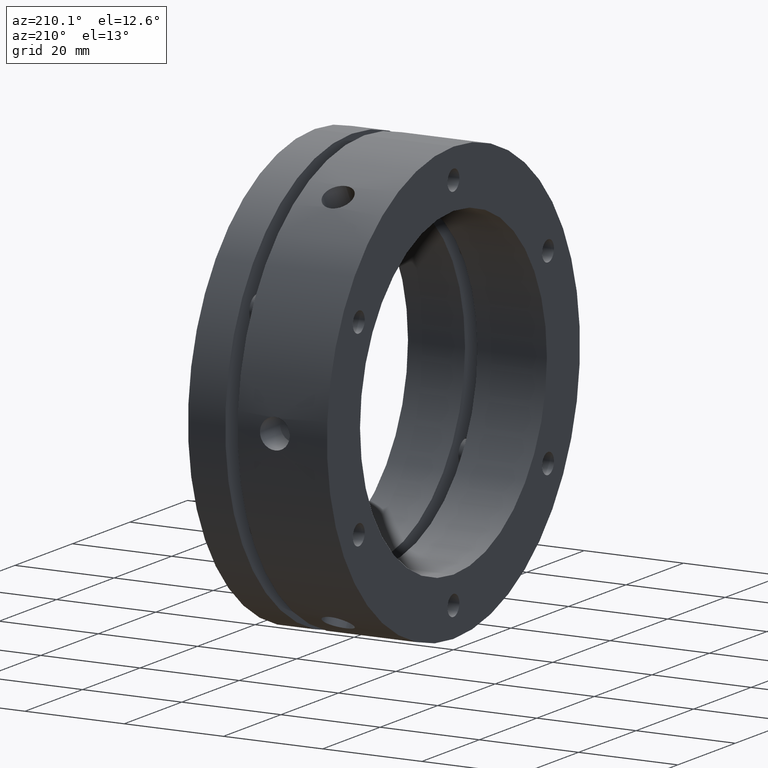
[diagram: clean part render]
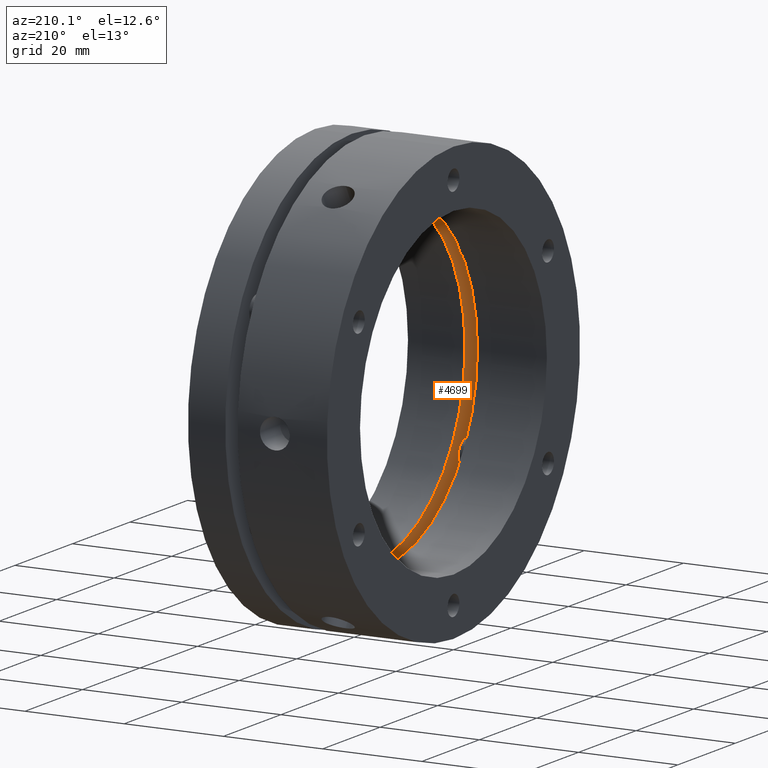
[diagram: same view with one face highlighted and labeled with its STEP entity id]
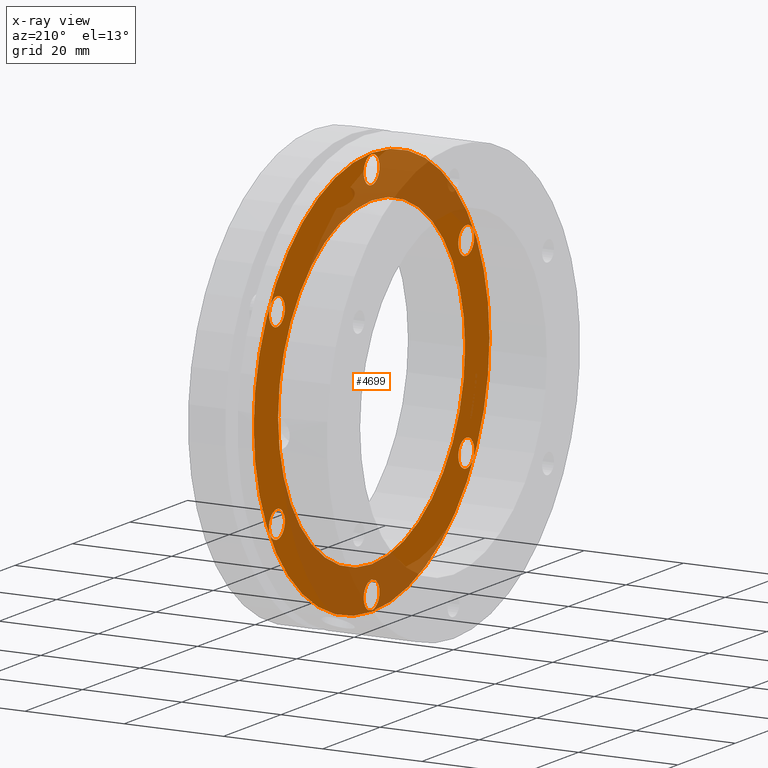
[diagram: x-ray of the same camera — body ghosted, the highlighted face saturated]
A machine part, auxiliary view. The second image highlights one B-rep face of the part: STEP entity #4699.
The next image is the same camera in x-ray: the body ghosted, the highlighted face saturated — about 36% of this face is hidden behind the body in this view.
In plain terms, the highlighted planar face has unit normal (1, 0, 0).
Its self-contained STEP definition (entity closure, byte-faithful):
#183 = CARTESIAN_POINT ( 'NONE',  ( 16.49999999999998900, 0.0000000000000000000, 35.25000000000002100 ) ) ;
#194 = CARTESIAN_POINT ( 'NONE',  ( 16.49999999999998900, 3.367778697655217600E-016, 40.75000000000002800 ) ) ;
#219 = CARTESIAN_POINT ( 'NONE',  ( 16.49999999999998900, -32.90896534380869600, 21.75000000000001400 ) ) ;
#485 = CARTESIAN_POINT ( 'NONE',  ( 16.49999999999998900, -32.90896534380870300, -19.00000000000000700 ) ) ;
#486 = DIRECTION ( 'NONE',  ( 1.000000000000000000, 0.0000000000000000000, 0.0000000000000000000 ) ) ;
#487 = DIRECTION ( 'NONE',  ( 0.0000000000000000000, 0.0000000000000000000, -1.000000000000000000 ) ) ;
#491 = CARTESIAN_POINT ( 'NONE',  ( 16.49999999999998900, 0.0000000000000000000, 38.00000000000002800 ) ) ;
#492 = DIRECTION ( 'NONE',  ( 1.000000000000000000, 0.0000000000000000000, 0.0000000000000000000 ) ) ;
#493 = DIRECTION ( 'NONE',  ( 0.0000000000000000000, 0.0000000000000000000, -1.000000000000000000 ) ) ;
#582 = CARTESIAN_POINT ( 'NONE',  ( 16.49999999999998900, 32.90896534380871000, 18.99999999999999300 ) ) ;
#583 = DIRECTION ( 'NONE',  ( 1.000000000000000000, 0.0000000000000000000, 0.0000000000000000000 ) ) ;
#584 = DIRECTION ( 'NONE',  ( 0.0000000000000000000, 0.0000000000000000000, -1.000000000000000000 ) ) ;
#605 = CARTESIAN_POINT ( 'NONE',  ( 16.50000000000000000, 0.0000000000000000000, 0.0000000000000000000 ) ) ;
#606 = DIRECTION ( 'NONE',  ( 1.000000000000000000, -0.0000000000000000000, -0.0000000000000000000 ) ) ;
#607 = DIRECTION ( 'NONE',  ( 0.0000000000000000000, 0.0000000000000000000, 1.000000000000000000 ) ) ;
#676 = CARTESIAN_POINT ( 'NONE',  ( 16.49999999999998900, 32.90896534380868800, -19.00000000000003200 ) ) ;
#677 = DIRECTION ( 'NONE',  ( 1.000000000000000000, 0.0000000000000000000, 0.0000000000000000000 ) ) ;
#678 = DIRECTION ( 'NONE',  ( 0.0000000000000000000, 0.0000000000000000000, -1.000000000000000000 ) ) ;
#689 = CARTESIAN_POINT ( 'NONE',  ( 16.49999999999998900, -6.661337999999999900E-015, -38.00000000000003600 ) ) ;
#690 = DIRECTION ( 'NONE',  ( 1.000000000000000000, 0.0000000000000000000, 0.0000000000000000000 ) ) ;
#691 = DIRECTION ( 'NONE',  ( 0.0000000000000000000, 0.0000000000000000000, -1.000000000000000000 ) ) ;
#711 = CARTESIAN_POINT ( 'NONE',  ( 16.49999999999998900, -32.90896534380869600, 19.00000000000001800 ) ) ;
#712 = DIRECTION ( 'NONE',  ( 1.000000000000000000, 0.0000000000000000000, 0.0000000000000000000 ) ) ;
#713 = DIRECTION ( 'NONE',  ( 0.0000000000000000000, 0.0000000000000000000, -1.000000000000000000 ) ) ;
#745 = CARTESIAN_POINT ( 'NONE',  ( 16.50000000000000000, 0.0000000000000000000, 0.0000000000000000000 ) ) ;
#746 = DIRECTION ( 'NONE',  ( 1.000000000000000000, -0.0000000000000000000, -0.0000000000000000000 ) ) ;
#747 = DIRECTION ( 'NONE',  ( 0.0000000000000000000, 0.0000000000000000000, 1.000000000000000000 ) ) ;
#754 = CARTESIAN_POINT ( 'NONE',  ( 16.49999999999998900, 0.0000000000000000000, 38.00000000000002800 ) ) ;
#755 = DIRECTION ( 'NONE',  ( 1.000000000000000000, 0.0000000000000000000, 0.0000000000000000000 ) ) ;
#756 = DIRECTION ( 'NONE',  ( 0.0000000000000000000, 0.0000000000000000000, -1.000000000000000000 ) ) ;
#757 = CARTESIAN_POINT ( 'NONE',  ( 16.50000000000000400, 0.0000000000000000000, 0.0000000000000000000 ) ) ;
#758 = DIRECTION ( 'NONE',  ( -1.000000000000000000, -0.0000000000000000000, -0.0000000000000000000 ) ) ;
#759 = DIRECTION ( 'NONE',  ( 0.0000000000000000000, 0.0000000000000000000, -1.000000000000000000 ) ) ;
#760 = CARTESIAN_POINT ( 'NONE',  ( 16.49999999999998900, -32.90896534380869600, 19.00000000000001800 ) ) ;
#761 = DIRECTION ( 'NONE',  ( 1.000000000000000000, 0.0000000000000000000, 0.0000000000000000000 ) ) ;
#762 = DIRECTION ( 'NONE',  ( 0.0000000000000000000, 0.0000000000000000000, -1.000000000000000000 ) ) ;
#763 = CARTESIAN_POINT ( 'NONE',  ( 16.49999999999998900, -32.90896534380870300, -19.00000000000000700 ) ) ;
#764 = DIRECTION ( 'NONE',  ( 1.000000000000000000, 0.0000000000000000000, 0.0000000000000000000 ) ) ;
#765 = DIRECTION ( 'NONE',  ( 0.0000000000000000000, 0.0000000000000000000, -1.000000000000000000 ) ) ;
#769 = CARTESIAN_POINT ( 'NONE',  ( 16.49999999999998900, -6.661337999999999900E-015, -38.00000000000003600 ) ) ;
#770 = DIRECTION ( 'NONE',  ( 1.000000000000000000, 0.0000000000000000000, 0.0000000000000000000 ) ) ;
#771 = DIRECTION ( 'NONE',  ( 0.0000000000000000000, 0.0000000000000000000, -1.000000000000000000 ) ) ;
#772 = CARTESIAN_POINT ( 'NONE',  ( 16.49999999999998900, 32.90896534380868800, -19.00000000000003200 ) ) ;
#773 = DIRECTION ( 'NONE',  ( 1.000000000000000000, 0.0000000000000000000, 0.0000000000000000000 ) ) ;
#774 = DIRECTION ( 'NONE',  ( 0.0000000000000000000, 0.0000000000000000000, -1.000000000000000000 ) ) ;
#778 = CARTESIAN_POINT ( 'NONE',  ( 16.49999999999998900, 32.90896534380871000, 18.99999999999999300 ) ) ;
#779 = DIRECTION ( 'NONE',  ( 1.000000000000000000, 0.0000000000000000000, 0.0000000000000000000 ) ) ;
#780 = DIRECTION ( 'NONE',  ( 0.0000000000000000000, 0.0000000000000000000, -1.000000000000000000 ) ) ;
#1037 = EDGE_LOOP ( 'NONE', ( #4096, #4097 ) ) ;
#1123 = VERTEX_POINT ( 'NONE', #4355 ) ;
#1128 = VERTEX_POINT ( 'NONE', #4360 ) ;
#1324 = CIRCLE ( 'NONE', #3224, 2.749999999999999100 ) ;
#1328 = CIRCLE ( 'NONE', #3225, 2.750000000000002700 ) ;
#1393 = CIRCLE ( 'NONE', #3238, 2.749999999999999100 ) ;
#1412 = CIRCLE ( 'NONE', #3241, 41.00000000000000700 ) ;
#1452 = CIRCLE ( 'NONE', #3256, 2.749999999999999100 ) ;
#1461 = CIRCLE ( 'NONE', #3258, 2.750000000000002700 ) ;
#1472 = CIRCLE ( 'NONE', #3264, 2.749999999999999100 ) ;
#1520 = CIRCLE ( 'NONE', #3271, 41.00000000000000700 ) ;
#1525 = CIRCLE ( 'NONE', #3274, 2.750000000000002700 ) ;
#1527 = CIRCLE ( 'NONE', #3275, 32.50000000000000000 ) ;
#1529 = CIRCLE ( 'NONE', #3276, 2.749999999999999100 ) ;
#1530 = CIRCLE ( 'NONE', #3277, 2.749999999999999100 ) ;
#1533 = CIRCLE ( 'NONE', #3279, 2.750000000000002700 ) ;
#1534 = CIRCLE ( 'NONE', #3280, 2.749999999999999100 ) ;
#1537 = CIRCLE ( 'NONE', #3282, 2.749999999999999100 ) ;
#1607 = VERTEX_POINT ( 'NONE', #183 ) ;
#1647 = CIRCLE ( 'NONE', #3342, 32.50000000000000000 ) ;
#1651 = VERTEX_POINT ( 'NONE', #194 ) ;
#1766 = VERTEX_POINT ( 'NONE', #219 ) ;
#1866 = FACE_BOUND ( 'NONE', #3493, .T. ) ;
#1867 = FACE_BOUND ( 'NONE', #3474, .T. ) ;
#1869 = FACE_BOUND ( 'NONE', #3509, .T. ) ;
#1871 = FACE_BOUND ( 'NONE', #3502, .T. ) ;
#1873 = FACE_BOUND ( 'NONE', #3544, .T. ) ;
#1874 = FACE_BOUND ( 'NONE', #3564, .T. ) ;
#1875 = FACE_BOUND ( 'NONE', #3559, .T. ) ;
#1876 = FACE_OUTER_BOUND ( 'NONE', #1037, .T. ) ;
#1895 = CARTESIAN_POINT ( 'NONE',  ( 16.50000000000000000, 5.021051876504149000E-015, -41.00000000000000700 ) ) ;
#1896 = CARTESIAN_POINT ( 'NONE',  ( 16.50000000000000000, 0.0000000000000000000, 41.00000000000000700 ) ) ;
#1899 = CARTESIAN_POINT ( 'NONE',  ( 16.49999999999998900, 32.90896534380871000, 16.24999999999999300 ) ) ;
#1900 = CARTESIAN_POINT ( 'NONE',  ( 16.49999999999998900, 32.90896534380871000, 21.74999999999999300 ) ) ;
#1903 = CARTESIAN_POINT ( 'NONE',  ( 16.49999999999998900, 32.90896534380868800, -21.75000000000002800 ) ) ;
#1904 = CARTESIAN_POINT ( 'NONE',  ( 16.49999999999998900, 32.90896534380868800, -16.25000000000003200 ) ) ;
#1907 = CARTESIAN_POINT ( 'NONE',  ( 16.49999999999998900, -6.661337999999999900E-015, -40.75000000000003600 ) ) ;
#1908 = CARTESIAN_POINT ( 'NONE',  ( 16.49999999999998900, -6.324560130234478200E-015, -35.25000000000002800 ) ) ;
#1911 = CARTESIAN_POINT ( 'NONE',  ( 16.49999999999998900, -32.90896534380870300, -21.75000000000000700 ) ) ;
#1912 = CARTESIAN_POINT ( 'NONE',  ( 16.49999999999998900, -32.90896534380870300, -16.25000000000000700 ) ) ;
#1915 = CARTESIAN_POINT ( 'NONE',  ( 16.49999999999998900, -32.90896534380869600, 16.25000000000001800 ) ) ;
#2016 = CARTESIAN_POINT ( 'NONE',  ( 16.50000000000000400, 0.0000000000000000000, 0.0000000000000000000 ) ) ;
#2017 = DIRECTION ( 'NONE',  ( -1.000000000000000000, -0.0000000000000000000, -0.0000000000000000000 ) ) ;
#2018 = DIRECTION ( 'NONE',  ( 0.0000000000000000000, 0.0000000000000000000, -1.000000000000000000 ) ) ;
#2278 = DIRECTION ( 'NONE',  ( 1.000000000000000000, -0.0000000000000000000, 0.0000000000000000000 ) ) ;
#2280 = CARTESIAN_POINT ( 'NONE',  ( 16.50000000000000400, 20.50000000000000400, 0.0000000000000000000 ) ) ;
#2282 = PLANE ( 'NONE',  #3426 ) ;
#2284 = DIRECTION ( 'NONE',  ( 0.0000000000000000000, 0.0000000000000000000, -1.000000000000000000 ) ) ;
#3145 = EDGE_CURVE ( 'NONE', #4572, #4571, #1324, .T. ) ;
#3148 = EDGE_CURVE ( 'NONE', #1651, #1607, #1328, .T. ) ;
#3186 = EDGE_CURVE ( 'NONE', #4560, #4559, #1393, .T. ) ;
#3198 = EDGE_CURVE ( 'NONE', #4556, #4555, #1412, .T. ) ;
#3224 = AXIS2_PLACEMENT_3D ( 'NONE', #485, #486, #487 ) ;
#3225 = AXIS2_PLACEMENT_3D ( 'NONE', #491, #492, #493 ) ;
#3238 = AXIS2_PLACEMENT_3D ( 'NONE', #582, #583, #584 ) ;
#3241 = AXIS2_PLACEMENT_3D ( 'NONE', #605, #606, #607 ) ;
#3256 = AXIS2_PLACEMENT_3D ( 'NONE', #676, #677, #678 ) ;
#3258 = AXIS2_PLACEMENT_3D ( 'NONE', #689, #690, #691 ) ;
#3264 = AXIS2_PLACEMENT_3D ( 'NONE', #711, #712, #713 ) ;
#3271 = AXIS2_PLACEMENT_3D ( 'NONE', #745, #746, #747 ) ;
#3274 = AXIS2_PLACEMENT_3D ( 'NONE', #754, #755, #756 ) ;
#3275 = AXIS2_PLACEMENT_3D ( 'NONE', #757, #758, #759 ) ;
#3276 = AXIS2_PLACEMENT_3D ( 'NONE', #760, #761, #762 ) ;
#3277 = AXIS2_PLACEMENT_3D ( 'NONE', #763, #764, #765 ) ;
#3279 = AXIS2_PLACEMENT_3D ( 'NONE', #769, #770, #771 ) ;
#3280 = AXIS2_PLACEMENT_3D ( 'NONE', #772, #773, #774 ) ;
#3282 = AXIS2_PLACEMENT_3D ( 'NONE', #778, #779, #780 ) ;
#3342 = AXIS2_PLACEMENT_3D ( 'NONE', #2016, #2017, #2018 ) ;
#3426 = AXIS2_PLACEMENT_3D ( 'NONE', #2280, #2278, #2284 ) ;
#3474 = EDGE_LOOP ( 'NONE', ( #4088, #4089 ) ) ;
#3493 = EDGE_LOOP ( 'NONE', ( #4082, #4083 ) ) ;
#3502 = EDGE_LOOP ( 'NONE', ( #4090, #4091 ) ) ;
#3509 = EDGE_LOOP ( 'NONE', ( #4086, #4087 ) ) ;
#3544 = EDGE_LOOP ( 'NONE', ( #4084, #4085 ) ) ;
#3559 = EDGE_LOOP ( 'NONE', ( #4094, #4095 ) ) ;
#3564 = EDGE_LOOP ( 'NONE', ( #4092, #4093 ) ) ;
#3585 = EDGE_CURVE ( 'NONE', #4564, #4563, #1452, .T. ) ;
#3590 = EDGE_CURVE ( 'NONE', #4568, #4567, #1461, .T. ) ;
#3598 = EDGE_CURVE ( 'NONE', #1766, #4575, #1472, .T. ) ;
#3613 = EDGE_CURVE ( 'NONE', #4555, #4556, #1520, .T. ) ;
#3616 = EDGE_CURVE ( 'NONE', #1607, #1651, #1525, .T. ) ;
#3617 = EDGE_CURVE ( 'NONE', #1123, #1128, #1527, .T. ) ;
#3618 = EDGE_CURVE ( 'NONE', #4575, #1766, #1529, .T. ) ;
#3619 = EDGE_CURVE ( 'NONE', #4571, #4572, #1530, .T. ) ;
#3621 = EDGE_CURVE ( 'NONE', #4567, #4568, #1533, .T. ) ;
#3622 = EDGE_CURVE ( 'NONE', #4563, #4564, #1534, .T. ) ;
#3624 = EDGE_CURVE ( 'NONE', #4559, #4560, #1537, .T. ) ;
#4082 = ORIENTED_EDGE ( 'NONE', *, *, #4614, .F. ) ;
#4083 = ORIENTED_EDGE ( 'NONE', *, *, #3617, .F. ) ;
#4084 = ORIENTED_EDGE ( 'NONE', *, *, #3616, .T. ) ;
#4085 = ORIENTED_EDGE ( 'NONE', *, *, #3148, .T. ) ;
#4086 = ORIENTED_EDGE ( 'NONE', *, *, #3618, .T. ) ;
#4087 = ORIENTED_EDGE ( 'NONE', *, *, #3598, .T. ) ;
#4088 = ORIENTED_EDGE ( 'NONE', *, *, #3619, .T. ) ;
#4089 = ORIENTED_EDGE ( 'NONE', *, *, #3145, .T. ) ;
#4090 = ORIENTED_EDGE ( 'NONE', *, *, #3621, .T. ) ;
#4091 = ORIENTED_EDGE ( 'NONE', *, *, #3590, .T. ) ;
#4092 = ORIENTED_EDGE ( 'NONE', *, *, #3622, .T. ) ;
#4093 = ORIENTED_EDGE ( 'NONE', *, *, #3585, .T. ) ;
#4094 = ORIENTED_EDGE ( 'NONE', *, *, #3624, .T. ) ;
#4095 = ORIENTED_EDGE ( 'NONE', *, *, #3186, .T. ) ;
#4096 = ORIENTED_EDGE ( 'NONE', *, *, #3198, .F. ) ;
#4097 = ORIENTED_EDGE ( 'NONE', *, *, #3613, .F. ) ;
#4355 = CARTESIAN_POINT ( 'NONE',  ( 16.50000000000000400, 3.980102097228898600E-015, 32.50000000000000000 ) ) ;
#4360 = CARTESIAN_POINT ( 'NONE',  ( 16.50000000000000400, 0.0000000000000000000, -32.50000000000000000 ) ) ;
#4555 = VERTEX_POINT ( 'NONE', #1895 ) ;
#4556 = VERTEX_POINT ( 'NONE', #1896 ) ;
#4559 = VERTEX_POINT ( 'NONE', #1899 ) ;
#4560 = VERTEX_POINT ( 'NONE', #1900 ) ;
#4563 = VERTEX_POINT ( 'NONE', #1903 ) ;
#4564 = VERTEX_POINT ( 'NONE', #1904 ) ;
#4567 = VERTEX_POINT ( 'NONE', #1907 ) ;
#4568 = VERTEX_POINT ( 'NONE', #1908 ) ;
#4571 = VERTEX_POINT ( 'NONE', #1911 ) ;
#4572 = VERTEX_POINT ( 'NONE', #1912 ) ;
#4575 = VERTEX_POINT ( 'NONE', #1915 ) ;
#4614 = EDGE_CURVE ( 'NONE', #1128, #1123, #1647, .T. ) ;
#4699 = ADVANCED_FACE ( 'NONE', ( #1866, #1873, #1869, #1867, #1871, #1874, #1875, #1876 ), #2282, .F. ) ;